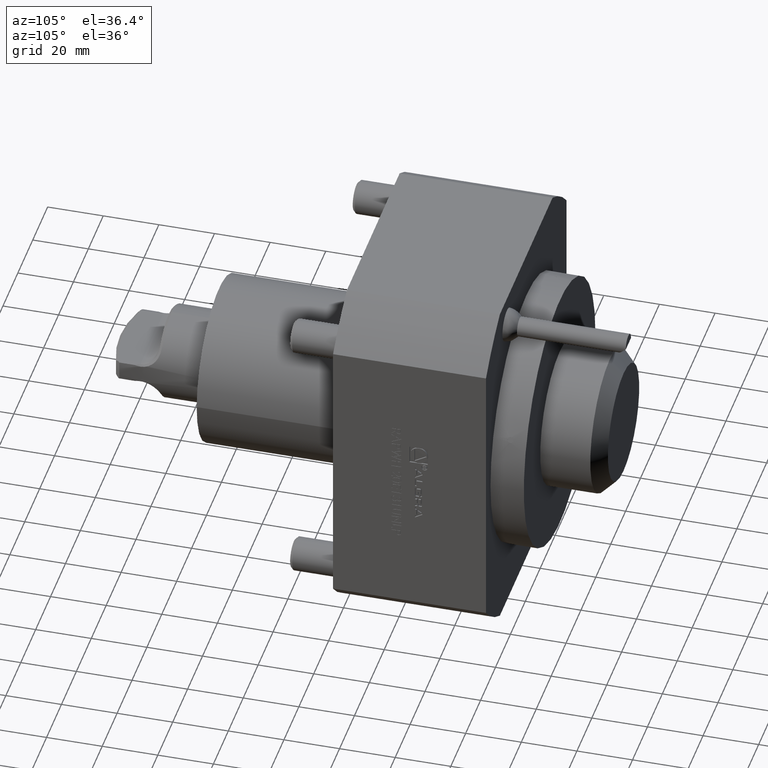
[diagram: clean part render]
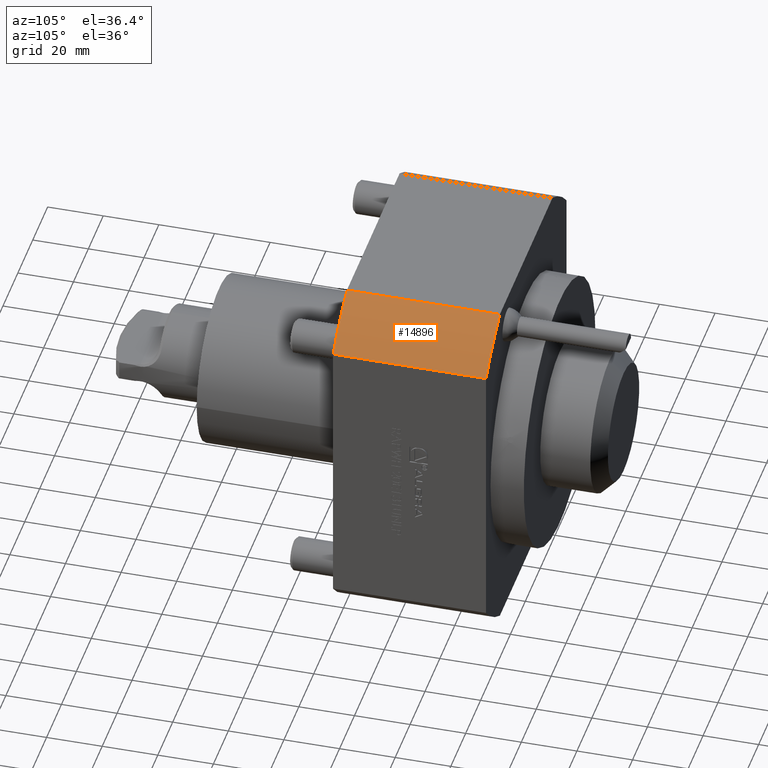
[diagram: same view with one face highlighted and labeled with its STEP entity id]
A machine part, auxiliary view. The second image highlights one B-rep face of the part: STEP entity #14896.
In plain terms, the highlighted cylindrical surface (partial cylindrical patch) has radius 74 mm, axis along (-0, -1, -0).
Its self-contained STEP definition (entity closure, byte-faithful):
#84 = ORIENTED_EDGE ( 'NONE', *, *, #7857, .T. ) ;
#442 = VERTEX_POINT ( 'NONE', #18511 ) ;
#857 = LINE ( 'NONE', #18457, #10327 ) ;
#988 = DIRECTION ( 'NONE',  ( -1.224646799147353207E-16, -1.000000000000000000, -0.000000000000000000 ) ) ;
#1161 = CARTESIAN_POINT ( 'NONE',  ( 6.735557395310443404E-15, 54.99999999999998579, 0.000000000000000000 ) ) ;
#1269 = DIRECTION ( 'NONE',  ( -1.224646799147353207E-16, -1.000000000000000000, -0.000000000000000000 ) ) ;
#1280 = ORIENTED_EDGE ( 'NONE', *, *, #7334, .F. ) ;
#1788 = FACE_OUTER_BOUND ( 'NONE', #14098, .T. ) ;
#2101 = CYLINDRICAL_SURFACE ( 'NONE', #15942, 73.99999999999998579 ) ;
#2741 = LINE ( 'NONE', #9080, #17628 ) ;
#3697 = ORIENTED_EDGE ( 'NONE', *, *, #4784, .F. ) ;
#4784 = EDGE_CURVE ( 'NONE', #442, #7389, #12512, .T. ) ;
#5216 = CARTESIAN_POINT ( 'NONE',  ( 1.540743955509788682E-30, 0.000000000000000000, 0.000000000000000000 ) ) ;
#5952 = DIRECTION ( 'NONE',  ( -1.224646799147353207E-16, -1.000000000000000000, -0.000000000000000000 ) ) ;
#7334 = EDGE_CURVE ( 'NONE', #12910, #442, #857, .T. ) ;
#7389 = VERTEX_POINT ( 'NONE', #13675 ) ;
#7857 = EDGE_CURVE ( 'NONE', #16354, #7389, #2741, .T. ) ;
#8148 = AXIS2_PLACEMENT_3D ( 'NONE', #1161, #1269, #13771 ) ;
#8809 = CIRCLE ( 'NONE', #8148, 74.00000000000000000 ) ;
#9080 = CARTESIAN_POINT ( 'NONE',  ( 35.36947836765478570, -42.99999999999988631, 64.99999999999997158 ) ) ;
#10327 = VECTOR ( 'NONE', #5952, 1000.000000000000000 ) ;
#11649 = DIRECTION ( 'NONE',  ( 0.000000000000000000, 0.000000000000000000, 1.000000000000000000 ) ) ;
#11730 = EDGE_CURVE ( 'NONE', #12910, #16354, #8809, .T. ) ;
#12512 = CIRCLE ( 'NONE', #19822, 73.99999999999998579 ) ;
#12910 = VERTEX_POINT ( 'NONE', #14530 ) ;
#13197 = ORIENTED_EDGE ( 'NONE', *, *, #11730, .T. ) ;
#13338 = DIRECTION ( 'NONE',  ( -1.224646799147353207E-16, -1.000000000000000000, -0.000000000000000000 ) ) ;
#13675 = CARTESIAN_POINT ( 'NONE',  ( 35.36947836765479281, -2.081668171172168513E-14, 64.99999999999997158 ) ) ;
#13771 = DIRECTION ( 'NONE',  ( 0.000000000000000000, 0.000000000000000000, 1.000000000000000000 ) ) ;
#14098 = EDGE_LOOP ( 'NONE', ( #13197, #84, #3697, #1280 ) ) ;
#14530 = CARTESIAN_POINT ( 'NONE',  ( 54.00000000000000711, 54.99999999999998579, 50.59644256269404394 ) ) ;
#14695 = CARTESIAN_POINT ( 'NONE',  ( -5.265981236333602693E-15, -42.99999999999987921, 0.000000000000000000 ) ) ;
#14702 = DIRECTION ( 'NONE',  ( -1.224646799147353207E-16, -1.000000000000000000, -0.000000000000000000 ) ) ;
#14896 = ADVANCED_FACE ( 'Defeature completata1_7', ( #1788 ), #2101, .T. ) ;
#15942 = AXIS2_PLACEMENT_3D ( 'NONE', #14695, #13338, #11649 ) ;
#15976 = CARTESIAN_POINT ( 'NONE',  ( 35.36947836765479991, 54.99999999999998579, 64.99999999999997158 ) ) ;
#16250 = DIRECTION ( 'NONE',  ( 0.000000000000000000, 0.000000000000000000, 1.000000000000000000 ) ) ;
#16354 = VERTEX_POINT ( 'NONE', #15976 ) ;
#17628 = VECTOR ( 'NONE', #988, 1000.000000000000000 ) ;
#18457 = CARTESIAN_POINT ( 'NONE',  ( 53.99999999999999289, -42.99999999999988631, 50.59644256269404394 ) ) ;
#18511 = CARTESIAN_POINT ( 'NONE',  ( 54.00000000000000000, -6.938893903907228378E-15, 50.59644256269404394 ) ) ;
#19822 = AXIS2_PLACEMENT_3D ( 'NONE', #5216, #14702, #16250 ) ;